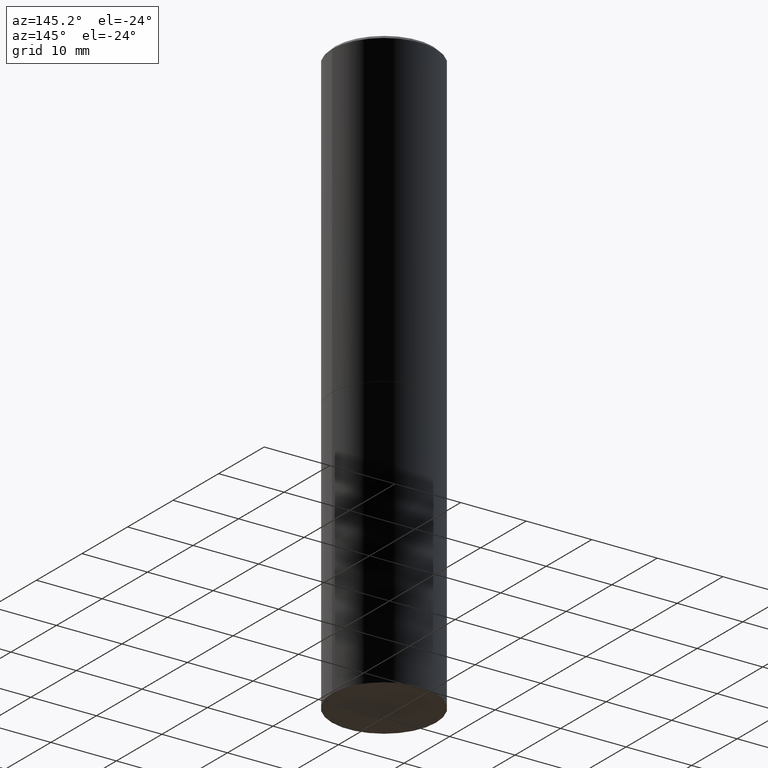
[diagram: clean part render]
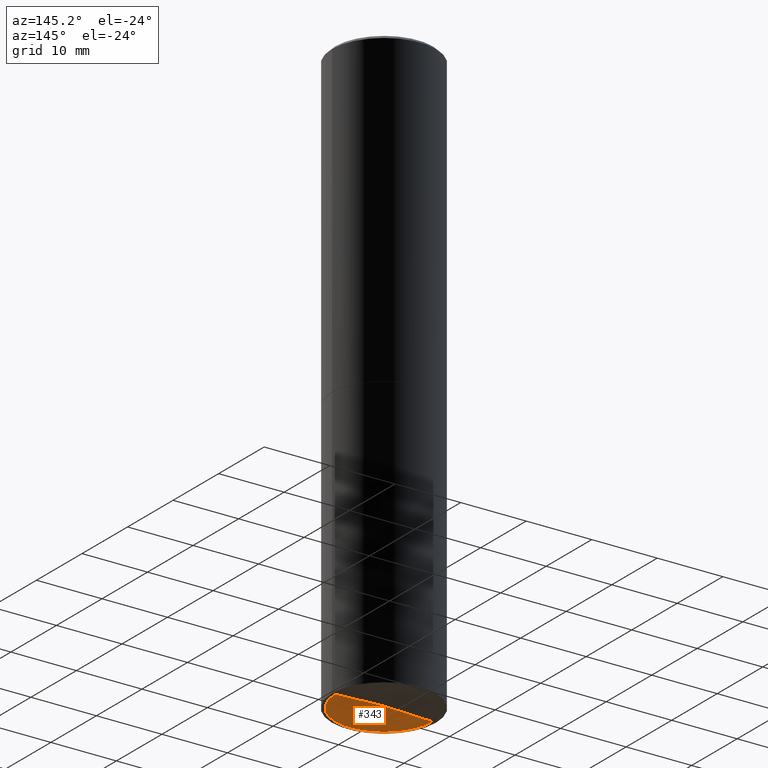
[diagram: same view with one face highlighted and labeled with its STEP entity id]
A machine part, auxiliary view. The second image highlights one B-rep face of the part: STEP entity #343.
In plain terms, the highlighted conical surface has half-angle 88 deg.
Its self-contained STEP definition (entity closure, byte-faithful):
#19 = CARTESIAN_POINT ( 'NONE',  ( -0.2925000000000000377, -1.017705870880701826E-14, -3.499825462644184704 ) ) ;
#25 = CARTESIAN_POINT ( 'NONE',  ( -0.2925000000000000377, -1.017705870880701826E-14, -3.499825462644184704 ) ) ;
#30 = CIRCLE ( 'NONE', #335, 0.2925000000000000377 ) ;
#32 = VERTEX_POINT ( 'NONE', #180 ) ;
#48 = CARTESIAN_POINT ( 'NONE',  ( 0.2925000000000000377, -1.422627095637842375E-14, -3.499825462644184704 ) ) ;
#57 = VERTEX_POINT ( 'NONE', #217 ) ;
#58 = CARTESIAN_POINT ( 'NONE',  ( 8.558713995988817956E-29, -1.221957529203025001E-14, -3.499825462644184704 ) ) ;
#69 = DIRECTION ( 'NONE',  ( 1.000000000000000000, -6.982962677686264344E-15, 0.000000000000000000 ) ) ;
#81 = VECTOR ( 'NONE', #264, 39.37007874015747433 ) ;
#85 = ORIENTED_EDGE ( 'NONE', *, *, #389, .F. ) ;
#97 = DIRECTION ( 'NONE',  ( -2.445468806185136597E-29, 3.491481338843145583E-15, 1.000000000000000000 ) ) ;
#136 = FACE_OUTER_BOUND ( 'NONE', #270, .T. ) ;
#163 = LINE ( 'NONE', #25, #81 ) ;
#180 = CARTESIAN_POINT ( 'NONE',  ( 0.2925000000000000377, -1.422627095637842375E-14, -3.499825462644184704 ) ) ;
#191 = VERTEX_POINT ( 'NONE', #19 ) ;
#217 = CARTESIAN_POINT ( 'NONE',  ( 8.536401521773362796E-29, -1.218009381723747733E-14, -3.489611137567848242 ) ) ;
#264 = DIRECTION ( 'NONE',  ( -0.9993908270190957621, 6.856857904024552526E-15, -0.03489949670250219738 ) ) ;
#269 = AXIS2_PLACEMENT_3D ( 'NONE', #368, #304, #336 ) ;
#270 = EDGE_LOOP ( 'NONE', ( #415, #338, #85 ) ) ;
#300 = EDGE_CURVE ( 'NONE', #57, #32, #351, .T. ) ;
#304 = DIRECTION ( 'NONE',  ( 2.445468806185136597E-29, -3.491481338843145583E-15, -1.000000000000000000 ) ) ;
#335 = AXIS2_PLACEMENT_3D ( 'NONE', #58, #97, #69 ) ;
#336 = DIRECTION ( 'NONE',  ( -1.000000000000000000, 6.982962677686264344E-15, 0.000000000000000000 ) ) ;
#338 = ORIENTED_EDGE ( 'NONE', *, *, #300, .T. ) ;
#343 = ADVANCED_FACE ( 'NONE', ( #136 ), #350, .F. ) ;
#350 = CONICAL_SURFACE ( 'NONE', #269, 0.2925000000000000377, 1.535889741755008808 ) ;
#351 = LINE ( 'NONE', #48, #408 ) ;
#357 = EDGE_CURVE ( 'NONE', #57, #191, #163, .T. ) ;
#368 = CARTESIAN_POINT ( 'NONE',  ( 8.558713995988817956E-29, -1.221957529203025001E-14, -3.499825462644184704 ) ) ;
#389 = EDGE_CURVE ( 'NONE', #191, #32, #30, .T. ) ;
#408 = VECTOR ( 'NONE', #435, 39.37007874015747433 ) ;
#415 = ORIENTED_EDGE ( 'NONE', *, *, #357, .F. ) ;
#435 = DIRECTION ( 'NONE',  ( 0.9993908270190957621, -6.978169709227547010E-15, -0.03489949670250219738 ) ) ;